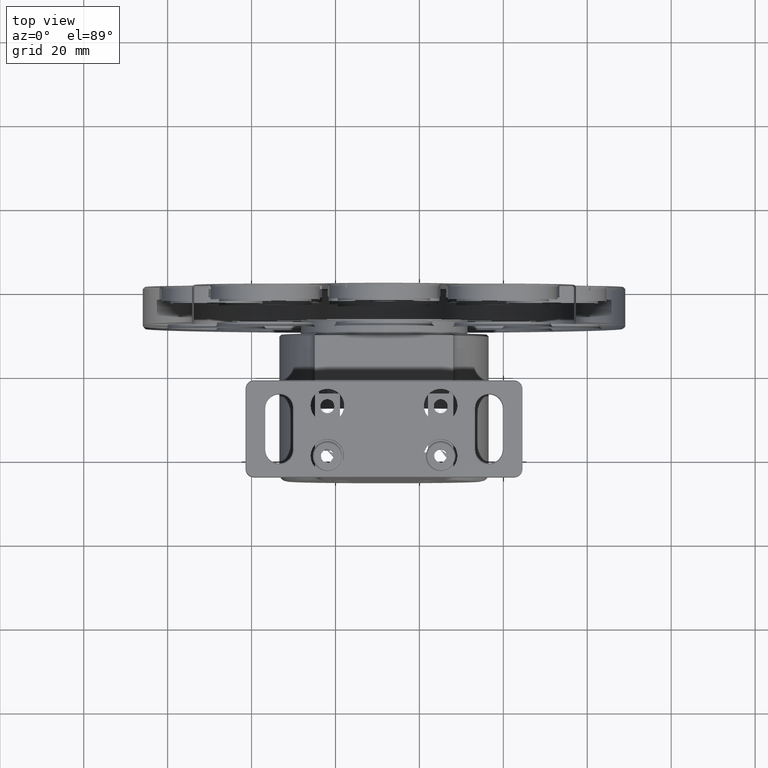
[diagram: clean part render]
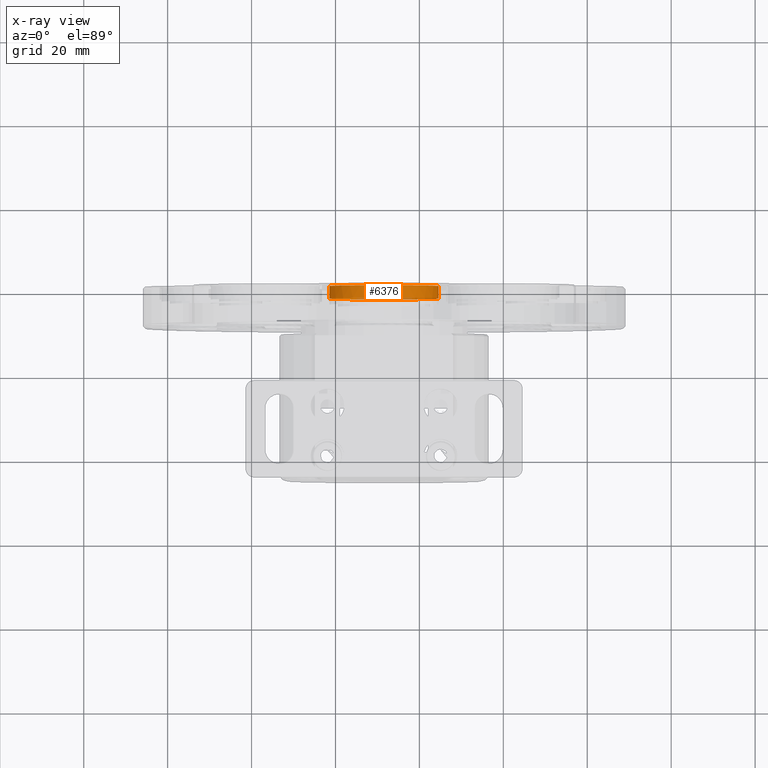
[diagram: x-ray — body ghosted, one internal face saturated and labeled with its STEP entity id]
A machine part, top view, then the same camera in x-ray: the body is ghosted and one INTERNAL B-rep face — a face not visible from any outside direction — is saturated and labeled: STEP entity #6376.
In plain terms, the highlighted cylindrical surface (bore or boss wall) has radius 13 mm, axis along (-0, 1, 0).
Its self-contained STEP definition (entity closure, byte-faithful):
#2761 = DIRECTION ( 'NONE',  ( 1.000000000000000000, 0.000000000000000000, 2.087005781867481238E-12 ) ) ;
#2944 = DIRECTION ( 'NONE',  ( -3.488278094132890012E-29, 1.000000000000000000, 0.000000000000000000 ) ) ;
#4533 = CARTESIAN_POINT ( 'NONE',  ( -15.43780630113369057, 40.25879132876271882, 110.0000000000271143 ) ) ;
#4732 = DIRECTION ( 'NONE',  ( -3.488278094132890012E-29, 1.000000000000000000, 0.000000000000000000 ) ) ;
#5509 = EDGE_LOOP ( 'NONE', ( #13519 ) ) ;
#6376 = ADVANCED_FACE ( 'NONE', ( #9248, #12053 ), #18293, .T. ) ;
#7437 = EDGE_LOOP ( 'NONE', ( #15646 ) ) ;
#9248 = FACE_OUTER_BOUND ( 'NONE', #5509, .T. ) ;
#10022 = VERTEX_POINT ( 'NONE', #13196 ) ;
#10130 = AXIS2_PLACEMENT_3D ( 'NONE', #16115, #2944, #2761 ) ;
#10402 = EDGE_CURVE ( 'NONE', #10022, #10022, #18663, .T. ) ;
#11470 = DIRECTION ( 'NONE',  ( -3.488278094132890012E-29, 1.000000000000000000, 0.000000000000000000 ) ) ;
#12053 = FACE_OUTER_BOUND ( 'NONE', #7437, .T. ) ;
#12340 = CARTESIAN_POINT ( 'NONE',  ( -28.43780630113369412, 37.25879132876270461, 109.9999999999999858 ) ) ;
#13196 = CARTESIAN_POINT ( 'NONE',  ( -41.43780630113369767, 37.25879132876270461, 109.9999999999999858 ) ) ;
#13519 = ORIENTED_EDGE ( 'NONE', *, *, #10402, .T. ) ;
#15017 = EDGE_CURVE ( 'NONE', #17797, #17797, #18740, .T. ) ;
#15127 = DIRECTION ( 'NONE',  ( -1.000000000000000000, 0.000000000000000000, 0.000000000000000000 ) ) ;
#15646 = ORIENTED_EDGE ( 'NONE', *, *, #15017, .F. ) ;
#16115 = CARTESIAN_POINT ( 'NONE',  ( -28.43780630113369412, 40.25879132876271882, 109.9999999999999858 ) ) ;
#16757 = AXIS2_PLACEMENT_3D ( 'NONE', #12340, #4732, #15127 ) ;
#17413 = AXIS2_PLACEMENT_3D ( 'NONE', #18200, #11470, #17512 ) ;
#17512 = DIRECTION ( 'NONE',  ( -1.000000000000000000, 0.000000000000000000, 0.000000000000000000 ) ) ;
#17797 = VERTEX_POINT ( 'NONE', #4533 ) ;
#18200 = CARTESIAN_POINT ( 'NONE',  ( -28.43780630113369412, 37.25879132876270461, 109.9999999999999858 ) ) ;
#18293 = CYLINDRICAL_SURFACE ( 'NONE', #16757, 13.00000000000000178 ) ;
#18663 = CIRCLE ( 'NONE', #17413, 13.00000000000000178 ) ;
#18740 = CIRCLE ( 'NONE', #10130, 13.00000000000000355 ) ;